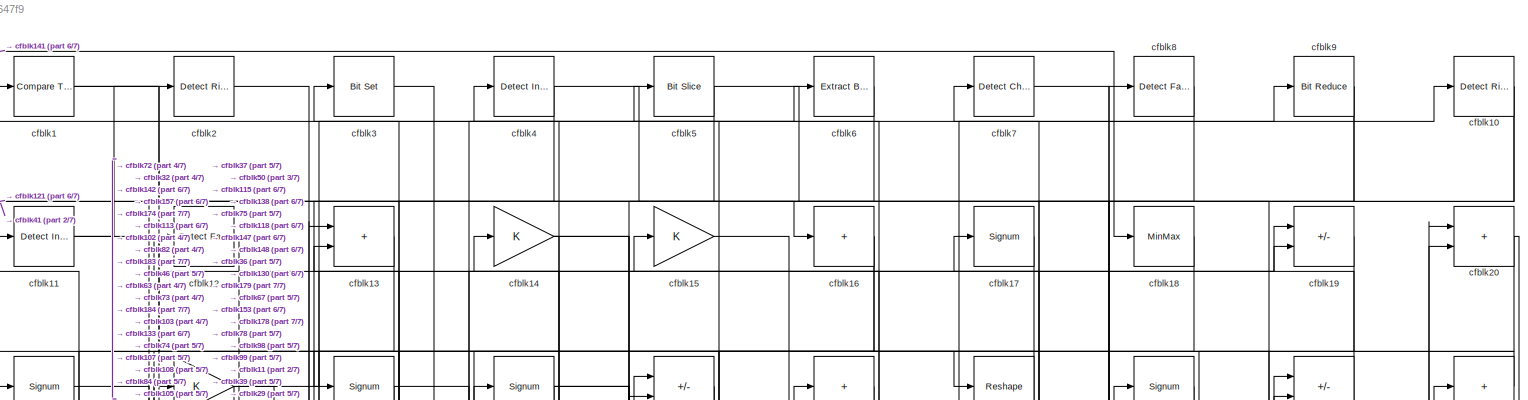
[diagram: root canvas - part 1/7, full width, top band]
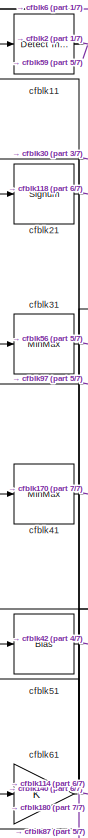
[diagram: root canvas - part 2/7, top left region]
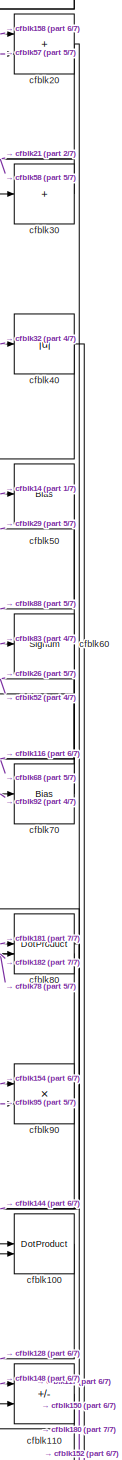
[diagram: root canvas - part 3/7, top right region]
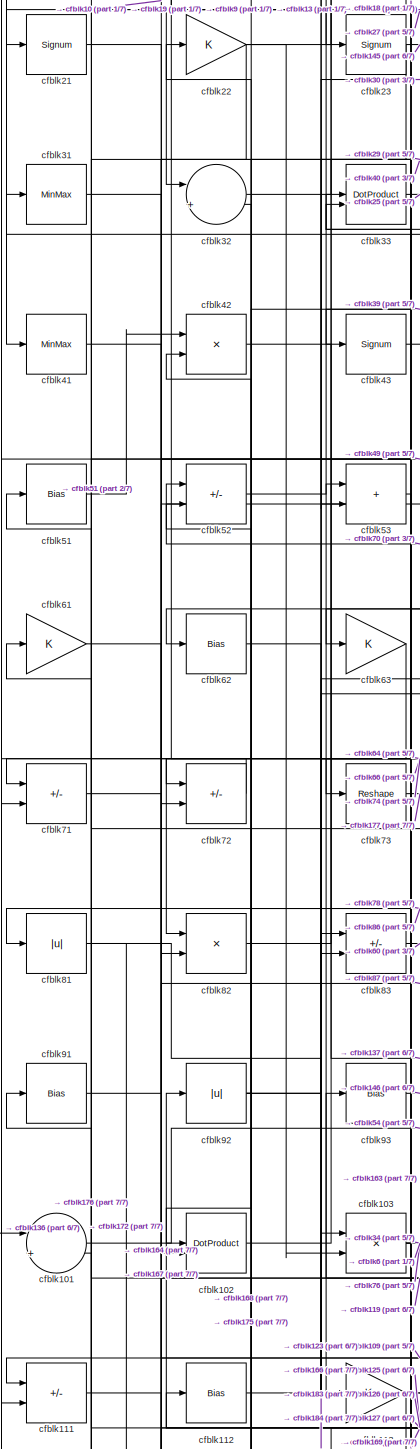
[diagram: root canvas - part 4/7, middle left region]
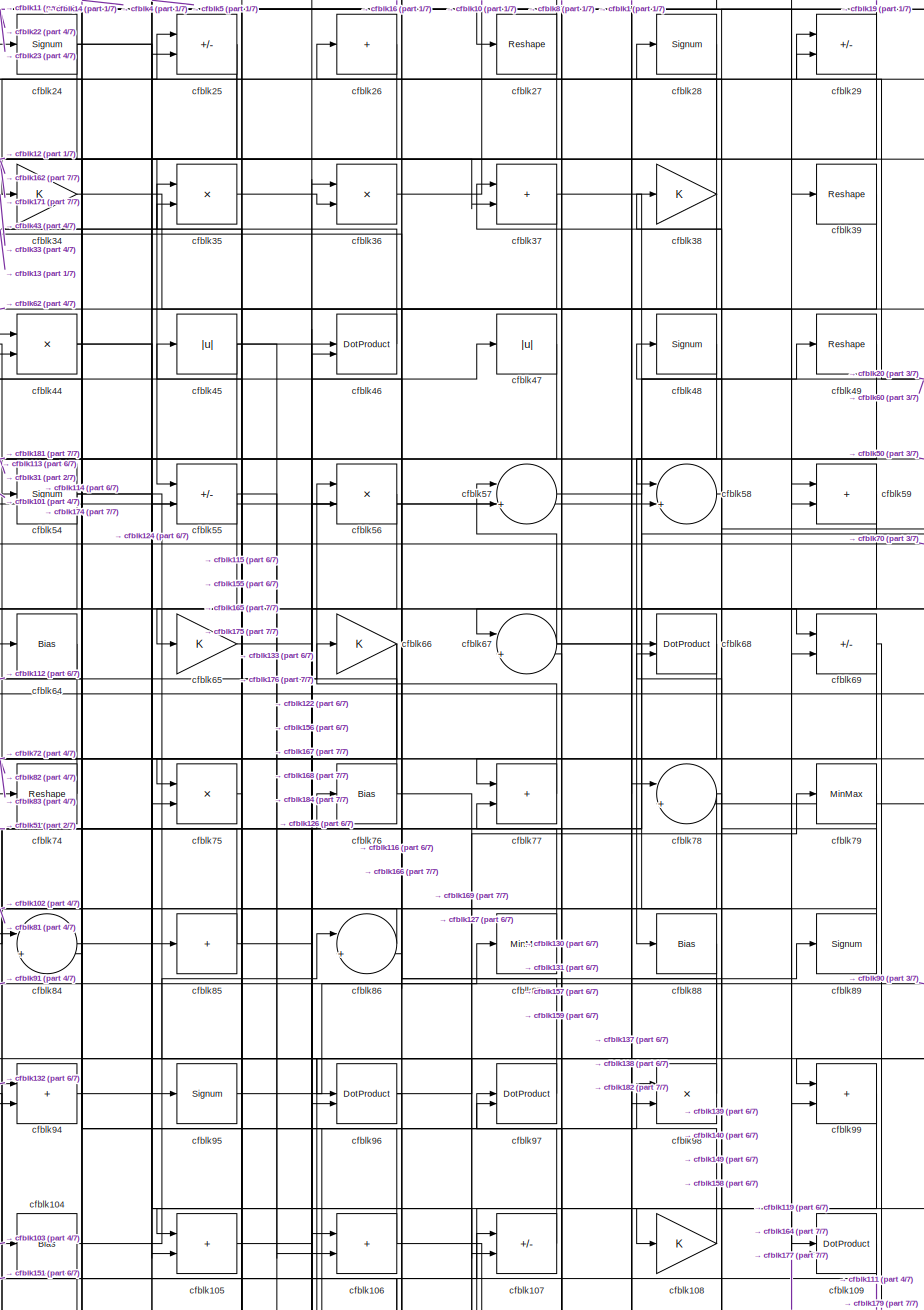
[diagram: root canvas - part 5/7, central region]
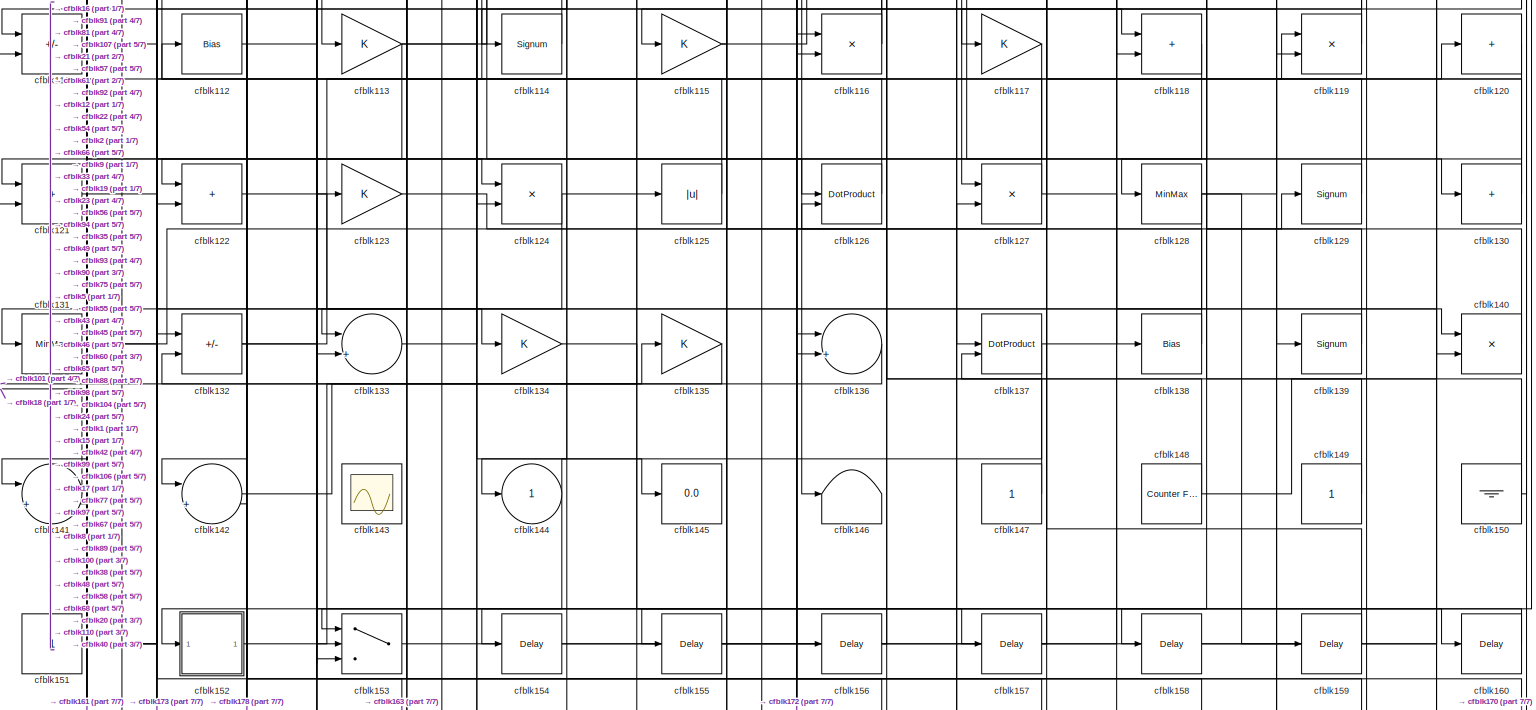
[diagram: root canvas - part 6/7, full width, bottom band]
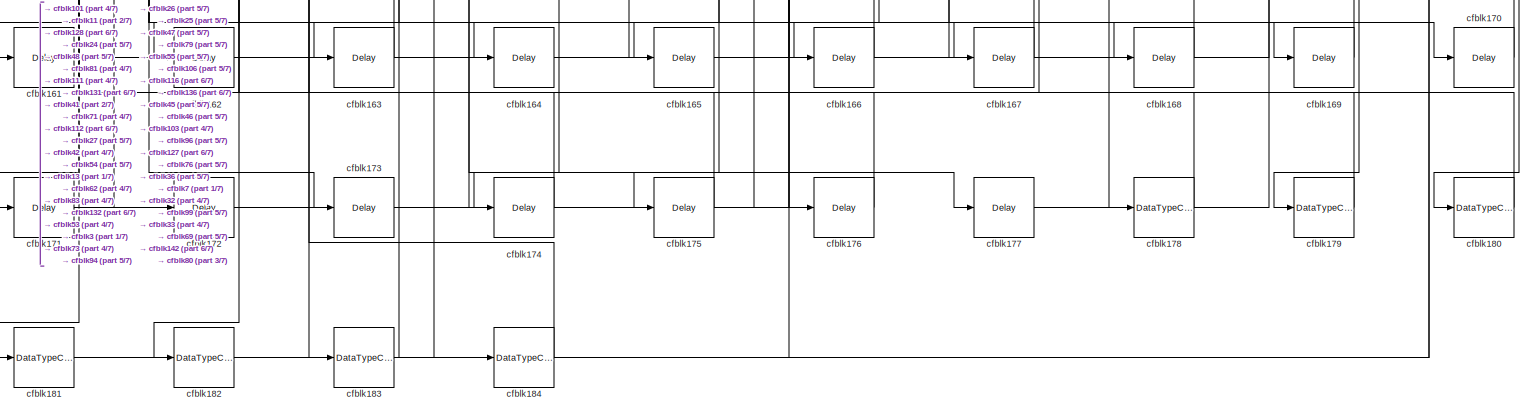
[diagram: root canvas - part 7/7, full width, bottom band]
MODEL slx_4ca75ce647f9
KIND model
CONFIG AbsTol = auto
CONFIG EnableMultiTasking = off
CONFIG FixedStep = auto
CONFIG MaxStep = auto
CONFIG MinStep = auto
CONFIG RelTol = 1e-3
CONFIG SampleTimeConstraint = Unconstrained
CONFIG SolverName = VariableStepAuto
CONFIG StartTime = 0.0
CONFIG StopTime = 10.0
BLOCK [Reference] cfblk1  REF=hdlsllib/Logic and Bit
Operations/Compare
To Zero
  SourceBlock = hdlsllib/Logic and Bit\nOperations/Compare\nTo Zero
  SourceType = Compare To Zero
BLOCK [Reference] cfblk10  REF=hdlsllib/Logic and Bit
Operations/Detect Rise
Positive
  SourceBlock = hdlsllib/Logic and Bit\nOperations/Detect Rise\nPositive
  SourceType = Detect Rise Positive
BLOCK [DotProduct] cfblk100
  OutDataTypeStr = Inherit: Inherit via internal rule
BLOCK [Sum] cfblk101
  Inputs = |++
BLOCK [DotProduct] cfblk102
  OutDataTypeStr = Inherit: Inherit via internal rule
BLOCK [Product] cfblk103
  Inputs = */
  RndMeth = Zero
  SaturateOnIntegerOverflow = on
BLOCK [Bias] cfblk104
  Bias = 0.0
  SaturateOnIntegerOverflow = off
BLOCK [Sum] cfblk105
  IconShape = rectangular
BLOCK [Sum] cfblk106
  IconShape = rectangular
BLOCK [Sum] cfblk107
  IconShape = rectangular
  Inputs = +-
BLOCK [Gain] cfblk108
BLOCK [DotProduct] cfblk109
  OutDataTypeStr = Inherit: Inherit via internal rule
BLOCK [Reference] cfblk11  REF=simulink/Logic and Bit
Operations/Detect
Increase
  LibrarySourceBlock = hdlsllib/Logic and Bit\nOperations/Detect\nIncrease
  SourceBlock = simulink/Logic and Bit\nOperations/Detect\nIncrease
  SourceType = Detect Increase
BLOCK [Sum] cfblk110
  IconShape = rectangular
  Inputs = +-
BLOCK [Sum] cfblk111
  IconShape = rectangular
  Inputs = +-
BLOCK [Bias] cfblk112
  Bias = 0.0
  SaturateOnIntegerOverflow = off
BLOCK [Gain] cfblk113
BLOCK [Signum] cfblk114
BLOCK [Gain] cfblk115
BLOCK [Product] cfblk116
  Inputs = */
  RndMeth = Zero
  SaturateOnIntegerOverflow = on
BLOCK [Gain] cfblk117
BLOCK [Sum] cfblk118
  IconShape = rectangular
BLOCK [Product] cfblk119
  Inputs = */
  RndMeth = Zero
  SaturateOnIntegerOverflow = on
BLOCK [Reference] cfblk12  REF=hdlsllib/Logic and Bit
Operations/Detect Fall
Negative
  SourceBlock = hdlsllib/Logic and Bit\nOperations/Detect Fall\nNegative
  SourceType = Detect Fall Negative
BLOCK [Sum] cfblk120
  IconShape = rectangular
  Inputs = +
BLOCK [Sum] cfblk121
  IconShape = rectangular
BLOCK [Sum] cfblk122
  IconShape = rectangular
BLOCK [Gain] cfblk123
BLOCK [Product] cfblk124
  Inputs = */
  RndMeth = Zero
  SaturateOnIntegerOverflow = on
BLOCK [Abs] cfblk125
  SaturateOnIntegerOverflow = off
BLOCK [DotProduct] cfblk126
  OutDataTypeStr = Inherit: Inherit via internal rule
BLOCK [Product] cfblk127
  Inputs = */
  RndMeth = Zero
  SaturateOnIntegerOverflow = on
BLOCK [MinMax] cfblk128
BLOCK [Signum] cfblk129
BLOCK [Sum] cfblk13
  IconShape = rectangular
BLOCK [Sum] cfblk130
  IconShape = rectangular
  Inputs = +
BLOCK [MinMax] cfblk131
BLOCK [Sum] cfblk132
  IconShape = rectangular
  Inputs = +-
BLOCK [Sum] cfblk133
  Inputs = |++
BLOCK [Gain] cfblk134
BLOCK [Gain] cfblk135
BLOCK [Sum] cfblk136
  Inputs = |++
BLOCK [DotProduct] cfblk137
  OutDataTypeStr = Inherit: Inherit via internal rule
BLOCK [Bias] cfblk138
  Bias = 0.0
  SaturateOnIntegerOverflow = off
BLOCK [Signum] cfblk139
BLOCK [Gain] cfblk14
BLOCK [Product] cfblk140
  Inputs = */
  RndMeth = Zero
  SaturateOnIntegerOverflow = on
BLOCK [Sum] cfblk141
  Inputs = |++
BLOCK [Sum] cfblk142
  Inputs = |++
BLOCK [Scope] cfblk143
  Floating = on
  NumInputPorts = 1
  ScopeSpecificationString = Simulink.scopes.TimeScopeBlockCfg('CurrentConfiguration', extmgr.ConfigurationSet(extmgr.Configuration('Core','General UI',true,'FigureColor',[0.156862745098039 0.156862745098039 0.156862745098039]),extmgr.Configuration('Core','Source UI',true),extmgr.Configuration('Sources','WiredSimulink',true,'DataLoggingVariableName','ScopeData1','DataLoggingSaveFormat','StructureWithTime','DataLoggingLimitDat...<+2713ch>
BLOCK [Outport] cfblk144
  VectorParamsAs1DForOutWhenUnconnected = off
BLOCK [Display] cfblk145
  Decimation = 1
BLOCK [Terminator] cfblk146
BLOCK [Constant] cfblk147
  SampleTime = -1
BLOCK [Reference] cfblk148  REF=hdlsllib/Sources/Counter
Free-Running
  SourceBlock = hdlsllib/Sources/Counter\nFree-Running
  SourceType = Counter Free-Running
BLOCK [Constant] cfblk149
  SampleTime = -1
BLOCK [Gain] cfblk15
BLOCK [Ground] cfblk150
BLOCK [Constant] cfblk151
  SampleTime = -1
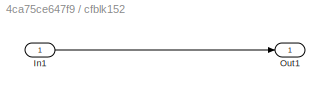
BLOCK [SubSystem] cfblk152
  LibrarySourceBlock = hdlsllib/Ports &\nSubsystems/Subsystem
BLOCK [Inport] cfblk152/In1
BLOCK [Outport] cfblk152/Out1
BLOCK [Switch] cfblk153
  InputSameDT = off
  SaturateOnIntegerOverflow = off
BLOCK [Delay] cfblk154
  InputPortMap = u0
  SampleTime = 1
BLOCK [Delay] cfblk155
  InputPortMap = u0
  SampleTime = 1
BLOCK [Delay] cfblk156
  InputPortMap = u0
  SampleTime = 1
BLOCK [Delay] cfblk157
  InputPortMap = u0
  SampleTime = 1
BLOCK [Delay] cfblk158
  InputPortMap = u0
  SampleTime = 1
BLOCK [Delay] cfblk159
  InputPortMap = u0
  SampleTime = 1
BLOCK [Sum] cfblk16
  IconShape = rectangular
  Inputs = +
BLOCK [Delay] cfblk160
  InputPortMap = u0
  SampleTime = 1
BLOCK [Delay] cfblk161
  InputPortMap = u0
  SampleTime = 1
BLOCK [Delay] cfblk162
  InputPortMap = u0
  SampleTime = 1
BLOCK [Delay] cfblk163
  InputPortMap = u0
  SampleTime = 1
BLOCK [Delay] cfblk164
  InputPortMap = u0
  SampleTime = 1
BLOCK [Delay] cfblk165
  InputPortMap = u0
  SampleTime = 1
BLOCK [Delay] cfblk166
  InputPortMap = u0
  SampleTime = 1
BLOCK [Delay] cfblk167
  InputPortMap = u0
  SampleTime = 1
BLOCK [Delay] cfblk168
  InputPortMap = u0
  SampleTime = 1
BLOCK [Delay] cfblk169
  InputPortMap = u0
  SampleTime = 1
BLOCK [Signum] cfblk17
BLOCK [Delay] cfblk170
  InputPortMap = u0
  SampleTime = 1
BLOCK [Delay] cfblk171
  InputPortMap = u0
  SampleTime = 1
BLOCK [Delay] cfblk172
  InputPortMap = u0
  SampleTime = 1
BLOCK [Delay] cfblk173
  InputPortMap = u0
  SampleTime = 1
BLOCK [Delay] cfblk174
  InputPortMap = u0
  SampleTime = 1
BLOCK [Delay] cfblk175
  InputPortMap = u0
  SampleTime = 1
BLOCK [Delay] cfblk176
  InputPortMap = u0
  SampleTime = 1
BLOCK [Delay] cfblk177
  InputPortMap = u0
  SampleTime = 1
BLOCK [DataTypeConversion] cfblk178
  OutDataTypeStr = uint8
  RndMeth = Floor
  SaturateOnIntegerOverflow = off
BLOCK [DataTypeConversion] cfblk179
  OutDataTypeStr = uint8
  RndMeth = Floor
  SaturateOnIntegerOverflow = off
BLOCK [MinMax] cfblk18
BLOCK [DataTypeConversion] cfblk180
  OutDataTypeStr = uint8
  RndMeth = Floor
  SaturateOnIntegerOverflow = off
BLOCK [DataTypeConversion] cfblk181
  OutDataTypeStr = uint8
  RndMeth = Floor
  SaturateOnIntegerOverflow = off
BLOCK [DataTypeConversion] cfblk182
  OutDataTypeStr = uint8
  RndMeth = Floor
  SaturateOnIntegerOverflow = off
BLOCK [DataTypeConversion] cfblk183
  OutDataTypeStr = boolean
  RndMeth = Floor
  SaturateOnIntegerOverflow = off
BLOCK [DataTypeConversion] cfblk184
  RndMeth = Floor
  SaturateOnIntegerOverflow = off
BLOCK [Sum] cfblk19
  IconShape = rectangular
  Inputs = +-
BLOCK [Reference] cfblk2  REF=hdlsllib/Logic and Bit
Operations/Detect Rise
Positive
  SourceBlock = hdlsllib/Logic and Bit\nOperations/Detect Rise\nPositive
  SourceType = Detect Rise Positive
BLOCK [Sum] cfblk20
  IconShape = rectangular
BLOCK [Signum] cfblk21
BLOCK [Gain] cfblk22
BLOCK [Signum] cfblk23
BLOCK [Signum] cfblk24
BLOCK [Sum] cfblk25
  IconShape = rectangular
  Inputs = +-
BLOCK [Sum] cfblk26
  IconShape = rectangular
  Inputs = +
BLOCK [Reshape] cfblk27
BLOCK [Signum] cfblk28
BLOCK [Sum] cfblk29
  IconShape = rectangular
  Inputs = +-
BLOCK [Reference] cfblk3  REF=simulink/Logic and Bit
Operations/Bit Set
  LibrarySourceBlock = hdlsllib/Logic and Bit\nOperations/Bit Set
  SourceBlock = simulink/Logic and Bit\nOperations/Bit Set
  SourceType = Bit Set
BLOCK [Sum] cfblk30
  IconShape = rectangular
  Inputs = +
BLOCK [MinMax] cfblk31
BLOCK [Sum] cfblk32
  Inputs = |++
BLOCK [DotProduct] cfblk33
  OutDataTypeStr = Inherit: Inherit via internal rule
BLOCK [Gain] cfblk34
BLOCK [Product] cfblk35
  Inputs = */
  RndMeth = Zero
  SaturateOnIntegerOverflow = on
BLOCK [Product] cfblk36
  Inputs = */
  RndMeth = Zero
  SaturateOnIntegerOverflow = on
BLOCK [Sum] cfblk37
  IconShape = rectangular
BLOCK [Gain] cfblk38
BLOCK [Reshape] cfblk39
BLOCK [Reference] cfblk4  REF=simulink/Logic and Bit
Operations/Detect
Increase
  LibrarySourceBlock = hdlsllib/Logic and Bit\nOperations/Detect\nIncrease
  SourceBlock = simulink/Logic and Bit\nOperations/Detect\nIncrease
  SourceType = Detect Increase
BLOCK [Abs] cfblk40
  SaturateOnIntegerOverflow = off
BLOCK [MinMax] cfblk41
BLOCK [Product] cfblk42
  Inputs = */
  RndMeth = Zero
  SaturateOnIntegerOverflow = on
BLOCK [Signum] cfblk43
BLOCK [Product] cfblk44
  Inputs = */
  RndMeth = Zero
  SaturateOnIntegerOverflow = on
BLOCK [Abs] cfblk45
  SaturateOnIntegerOverflow = off
BLOCK [DotProduct] cfblk46
  OutDataTypeStr = Inherit: Inherit via internal rule
BLOCK [Abs] cfblk47
  SaturateOnIntegerOverflow = off
BLOCK [Signum] cfblk48
BLOCK [Reshape] cfblk49
BLOCK [Reference] cfblk5  REF=hdlsllib/Logic and Bit
Operations/Bit Slice
  SourceBlock = hdlsllib/Logic and Bit\nOperations/Bit Slice
  SourceType = Bit Slice
BLOCK [Bias] cfblk50
  Bias = 0.0
  SaturateOnIntegerOverflow = off
BLOCK [Bias] cfblk51
  Bias = 0.0
  SaturateOnIntegerOverflow = off
BLOCK [Sum] cfblk52
  IconShape = rectangular
  Inputs = +-
BLOCK [Sum] cfblk53
  IconShape = rectangular
BLOCK [Signum] cfblk54
BLOCK [Sum] cfblk55
  IconShape = rectangular
  Inputs = +-
BLOCK [Product] cfblk56
  Inputs = */
  RndMeth = Zero
  SaturateOnIntegerOverflow = on
BLOCK [Sum] cfblk57
  Inputs = |++
BLOCK [Sum] cfblk58
  Inputs = |++
BLOCK [Sum] cfblk59
  IconShape = rectangular
BLOCK [Reference] cfblk6  REF=simulink/Logic and Bit
Operations/Extract Bits
  LibrarySourceBlock = hdlsllib/Logic and Bit\nOperations/Extract Bits
  SourceBlock = simulink/Logic and Bit\nOperations/Extract Bits
  SourceType = Extract Bits
BLOCK [Signum] cfblk60
BLOCK [Gain] cfblk61
BLOCK [Bias] cfblk62
  Bias = 0.0
  SaturateOnIntegerOverflow = off
BLOCK [Gain] cfblk63
BLOCK [Bias] cfblk64
  Bias = 0.0
  SaturateOnIntegerOverflow = off
BLOCK [Gain] cfblk65
BLOCK [Gain] cfblk66
BLOCK [Sum] cfblk67
  Inputs = |++
BLOCK [DotProduct] cfblk68
  OutDataTypeStr = Inherit: Inherit via internal rule
BLOCK [Sum] cfblk69
  IconShape = rectangular
  Inputs = +-
BLOCK [Reference] cfblk7  REF=simulink/Logic and Bit
Operations/Detect
Change
  LibrarySourceBlock = hdlsllib/Logic and Bit\nOperations/Detect\nChange
  SourceBlock = simulink/Logic and Bit\nOperations/Detect\nChange
  SourceType = Detect Change
BLOCK [Bias] cfblk70
  Bias = 0.0
  SaturateOnIntegerOverflow = off
BLOCK [Sum] cfblk71
  IconShape = rectangular
  Inputs = +-
BLOCK [Sum] cfblk72
  IconShape = rectangular
  Inputs = +-
BLOCK [Reshape] cfblk73
BLOCK [Reshape] cfblk74
BLOCK [Product] cfblk75
  Inputs = */
  RndMeth = Zero
  SaturateOnIntegerOverflow = on
BLOCK [Bias] cfblk76
  Bias = 0.0
  SaturateOnIntegerOverflow = off
BLOCK [Sum] cfblk77
  IconShape = rectangular
BLOCK [Sum] cfblk78
  Inputs = |++
BLOCK [MinMax] cfblk79
BLOCK [Reference] cfblk8  REF=hdlsllib/Logic and Bit
Operations/Detect Fall
Negative
  SourceBlock = hdlsllib/Logic and Bit\nOperations/Detect Fall\nNegative
  SourceType = Detect Fall Negative
BLOCK [DotProduct] cfblk80
  OutDataTypeStr = Inherit: Inherit via internal rule
BLOCK [Abs] cfblk81
  SaturateOnIntegerOverflow = off
BLOCK [Product] cfblk82
  Inputs = */
  RndMeth = Zero
  SaturateOnIntegerOverflow = on
BLOCK [Sum] cfblk83
  IconShape = rectangular
  Inputs = +-
BLOCK [Sum] cfblk84
  Inputs = |++
BLOCK [Sum] cfblk85
  IconShape = rectangular
  Inputs = +
BLOCK [Sum] cfblk86
  Inputs = |++
BLOCK [MinMax] cfblk87
BLOCK [Bias] cfblk88
  Bias = 0.0
  SaturateOnIntegerOverflow = off
BLOCK [Signum] cfblk89
BLOCK [Reference] cfblk9  REF=hdlsllib/Logic and Bit
Operations/Bit Reduce
  SourceBlock = hdlsllib/Logic and Bit\nOperations/Bit Reduce
  SourceType = Bit Reduce
BLOCK [Product] cfblk90
  Inputs = */
  RndMeth = Zero
  SaturateOnIntegerOverflow = on
BLOCK [Bias] cfblk91
  Bias = 0.0
  SaturateOnIntegerOverflow = off
BLOCK [Abs] cfblk92
  SaturateOnIntegerOverflow = off
BLOCK [Bias] cfblk93
  Bias = 0.0
  SaturateOnIntegerOverflow = off
BLOCK [Sum] cfblk94
  IconShape = rectangular
BLOCK [Signum] cfblk95
BLOCK [DotProduct] cfblk96
  OutDataTypeStr = Inherit: Inherit via internal rule
BLOCK [DotProduct] cfblk97
  OutDataTypeStr = Inherit: Inherit via internal rule
BLOCK [Product] cfblk98
  Inputs = */
  RndMeth = Zero
  SaturateOnIntegerOverflow = on
BLOCK [Sum] cfblk99
  IconShape = rectangular
LINE cfblk100:1 -> cfblk128:1
LINE cfblk101:1 -> cfblk54:1
LINE cfblk102:1 -> cfblk19:1
NET cfblk103:1 -> cfblk34:1, cfblk6:1, cfblk76:1
LINE cfblk104:1 -> cfblk86:1
LINE cfblk105:1 -> cfblk47:1
NET cfblk106:1 -> cfblk130:1, cfblk44:2
LINE cfblk107:1 -> cfblk4:1
LINE cfblk108:1 -> cfblk14:1
LINE cfblk109:1 -> cfblk111:1
NET cfblk10:1 -> cfblk72:2, cfblk98:2
LINE cfblk110:1 -> cfblk117:1
LINE cfblk111:1 -> cfblk164:1
LINE cfblk112:1 -> cfblk66:1
NET cfblk113:1 -> cfblk153:2, cfblk35:2, cfblk49:1
LINE cfblk114:1 -> cfblk61:1
NET cfblk115:1 -> cfblk35:1, cfblk98:1
NET cfblk116:1 -> cfblk104:1, cfblk24:1
LINE cfblk117:1 -> cfblk121:1
LINE cfblk118:1 -> cfblk131:1
LINE cfblk119:1 -> cfblk93:1
NET cfblk11:1 -> cfblk2:1, cfblk59:1
LINE cfblk120:1 -> cfblk122:1
LINE cfblk121:1 -> cfblk124:1
LINE cfblk122:1 -> cfblk134:1
LINE cfblk123:1 -> cfblk129:1
NET cfblk124:1 -> cfblk153:3, cfblk75:2
LINE cfblk125:1 -> cfblk22:1
LINE cfblk126:1 -> cfblk91:1
NET cfblk127:1 -> cfblk140:2, cfblk33:1
NET cfblk128:1 -> cfblk120:1, cfblk159:1, cfblk161:1
LINE cfblk129:1 -> cfblk92:1
LINE cfblk12:1 -> cfblk142:1
NET cfblk130:1 -> cfblk17:1, cfblk97:2
NET cfblk131:1 -> cfblk141:2, cfblk173:1, cfblk97:1
NET cfblk132:1 -> cfblk133:2, cfblk94:1
LINE cfblk133:1 -> cfblk19:2
LINE cfblk134:1 -> cfblk160:1
LINE cfblk135:1 -> cfblk132:2
LINE cfblk136:1 -> cfblk101:1
NET cfblk137:1 -> cfblk154:1, cfblk89:1
LINE cfblk138:1 -> cfblk5:1
LINE cfblk139:1 -> cfblk48:1
LINE cfblk13:1 -> cfblk32:1
LINE cfblk140:1 -> cfblk68:2
LINE cfblk141:1 -> cfblk18:1
LINE cfblk142:1 -> cfblk125:1
LINE cfblk147:1 -> cfblk15:1
NET cfblk148:1 -> cfblk110:1, cfblk1:1
LINE cfblk149:1 -> cfblk38:1
NET cfblk14:1 -> cfblk37:2, cfblk50:1, cfblk84:2
NET cfblk150:1 -> cfblk110:2, cfblk137:2
NET cfblk151:1 -> cfblk107:1, cfblk119:1, cfblk57:2
LINE cfblk152/In1:1 -> cfblk152/Out1:1
LINE cfblk152:1 -> cfblk135:1
LINE cfblk153:1 -> cfblk8:1
LINE cfblk154:1 -> cfblk90:1
LINE cfblk155:1 -> cfblk46:1
LINE cfblk156:1 -> cfblk126:2
LINE cfblk157:1 -> cfblk67:2
LINE cfblk158:1 -> cfblk20:1
LINE cfblk159:1 -> cfblk77:2
LINE cfblk15:1 -> cfblk118:1
LINE cfblk160:1 -> cfblk153:1
LINE cfblk161:1 -> cfblk127:2
LINE cfblk162:1 -> cfblk25:2
LINE cfblk163:1 -> cfblk132:1
LINE cfblk164:1 -> cfblk69:2
LINE cfblk165:1 -> cfblk106:1
LINE cfblk166:1 -> cfblk103:1
LINE cfblk167:1 -> cfblk36:1
LINE cfblk168:1 -> cfblk32:2
LINE cfblk169:1 -> cfblk33:2
NET cfblk16:1 -> cfblk141:1, cfblk75:1
LINE cfblk170:1 -> cfblk142:2
LINE cfblk171:1 -> cfblk94:2
LINE cfblk172:1 -> cfblk136:1
LINE cfblk173:1 -> cfblk116:1
LINE cfblk174:1 -> cfblk13:1
LINE cfblk175:1 -> cfblk42:2
LINE cfblk176:1 -> cfblk101:2
LINE cfblk177:1 -> cfblk99:2
LINE cfblk178:1 -> cfblk112:1
LINE cfblk179:1 -> cfblk7:1
LINE cfblk17:1 -> cfblk115:1
LINE cfblk180:1 -> cfblk11:1
LINE cfblk181:1 -> cfblk80:1
LINE cfblk182:1 -> cfblk80:2
LINE cfblk183:1 -> cfblk3:1
NET cfblk184:1 -> cfblk46:2, cfblk83:1
LINE cfblk18:1 -> cfblk63:1
LINE cfblk19:1 -> cfblk74:1
NET cfblk1:1 -> cfblk78:1, cfblk99:1
NET cfblk20:1 -> cfblk100:1, cfblk58:1
LINE cfblk21:1 -> cfblk118:2
NET cfblk22:1 -> cfblk103:2, cfblk27:1, cfblk82:2
NET cfblk23:1 -> cfblk145:1, cfblk53:2
NET cfblk24:1 -> cfblk171:1, cfblk29:2, cfblk85:1
NET cfblk25:1 -> cfblk43:1, cfblk84:1
LINE cfblk26:1 -> cfblk174:1
NET cfblk27:1 -> cfblk162:1, cfblk23:1
LINE cfblk28:1 -> cfblk55:1
NET cfblk29:1 -> cfblk102:2, cfblk12:1
LINE cfblk2:1 -> cfblk157:1
LINE cfblk30:1 -> cfblk21:1
LINE cfblk31:1 -> cfblk56:2
LINE cfblk32:1 -> cfblk40:1
LINE cfblk33:1 -> cfblk25:1
LINE cfblk34:1 -> cfblk109:1
LINE cfblk35:1 -> cfblk36:2
LINE cfblk36:1 -> cfblk10:1
NET cfblk37:1 -> cfblk105:1, cfblk69:1
NET cfblk38:1 -> cfblk28:1, cfblk86:2
LINE cfblk39:1 -> cfblk62:1
LINE cfblk3:1 -> cfblk184:1
NET cfblk40:1 -> cfblk100:2, cfblk152:1
LINE cfblk41:1 -> cfblk170:1
LINE cfblk42:1 -> cfblk137:1
LINE cfblk43:1 -> cfblk136:2
NET cfblk44:1 -> cfblk109:2, cfblk96:1
NET cfblk45:1 -> cfblk106:2, cfblk122:2, cfblk168:1
LINE cfblk46:1 -> cfblk13:2
LINE cfblk47:1 -> cfblk175:1
LINE cfblk48:1 -> cfblk181:1
NET cfblk49:1 -> cfblk111:2, cfblk59:2
NET cfblk4:1 -> cfblk16:1, cfblk73:1
LINE cfblk50:1 -> cfblk88:1
LINE cfblk51:1 -> cfblk42:1
LINE cfblk52:1 -> cfblk53:1
LINE cfblk53:1 -> cfblk163:1
NET cfblk54:1 -> cfblk107:2, cfblk138:1, cfblk182:1
NET cfblk55:1 -> cfblk133:1, cfblk176:1
LINE cfblk56:1 -> cfblk124:2
LINE cfblk57:1 -> cfblk20:2
LINE cfblk58:1 -> cfblk158:1
LINE cfblk59:1 -> cfblk65:1
NET cfblk5:1 -> cfblk105:2, cfblk39:1
NET cfblk60:1 -> cfblk116:2, cfblk29:1, cfblk68:1
LINE cfblk61:1 -> cfblk140:1
LINE cfblk62:1 -> cfblk183:1
LINE cfblk63:1 -> cfblk71:2
LINE cfblk64:1 -> cfblk82:1
LINE cfblk65:1 -> cfblk156:1
NET cfblk66:1 -> cfblk114:1, cfblk83:2
NET cfblk67:1 -> cfblk119:2, cfblk139:1, cfblk57:1
LINE cfblk68:1 -> cfblk77:1
NET cfblk69:1 -> cfblk179:1, cfblk96:2
LINE cfblk6:1 -> cfblk41:1
NET cfblk70:1 -> cfblk26:1, cfblk52:1
LINE cfblk71:1 -> cfblk167:1
LINE cfblk72:1 -> cfblk71:1
LINE cfblk73:1 -> cfblk177:1
LINE cfblk74:1 -> cfblk72:1
LINE cfblk75:1 -> cfblk155:1
NET cfblk76:1 -> cfblk169:1, cfblk45:1
LINE cfblk77:1 -> cfblk56:1
NET cfblk78:1 -> cfblk102:1, cfblk108:1
LINE cfblk79:1 -> cfblk165:1
LINE cfblk7:1 -> cfblk178:1
LINE cfblk80:1 -> cfblk180:1
NET cfblk81:1 -> cfblk123:1, cfblk172:1
LINE cfblk82:1 -> cfblk9:1
LINE cfblk83:1 -> cfblk60:1
LINE cfblk84:1 -> cfblk55:2
NET cfblk85:1 -> cfblk58:2, cfblk64:1
LINE cfblk86:1 -> cfblk81:1
LINE cfblk87:1 -> cfblk51:1
LINE cfblk88:1 -> cfblk126:1
LINE cfblk89:1 -> cfblk37:1
LINE cfblk8:1 -> cfblk67:1
NET cfblk90:1 -> cfblk144:1, cfblk78:2
LINE cfblk91:1 -> cfblk87:1
NET cfblk92:1 -> cfblk30:1, cfblk52:2, cfblk70:1
LINE cfblk93:1 -> cfblk146:1
LINE cfblk94:1 -> cfblk95:1
LINE cfblk95:1 -> cfblk90:2
NET cfblk96:1 -> cfblk166:1, cfblk79:1
LINE cfblk97:1 -> cfblk31:1
LINE cfblk98:1 -> cfblk44:1
LINE cfblk99:1 -> cfblk127:1
NET cfblk9:1 -> cfblk113:1, cfblk121:2
note: NET lines group one-source signal fan-out (src -> all destinations, sorted); 1:1 wires keep LINE
